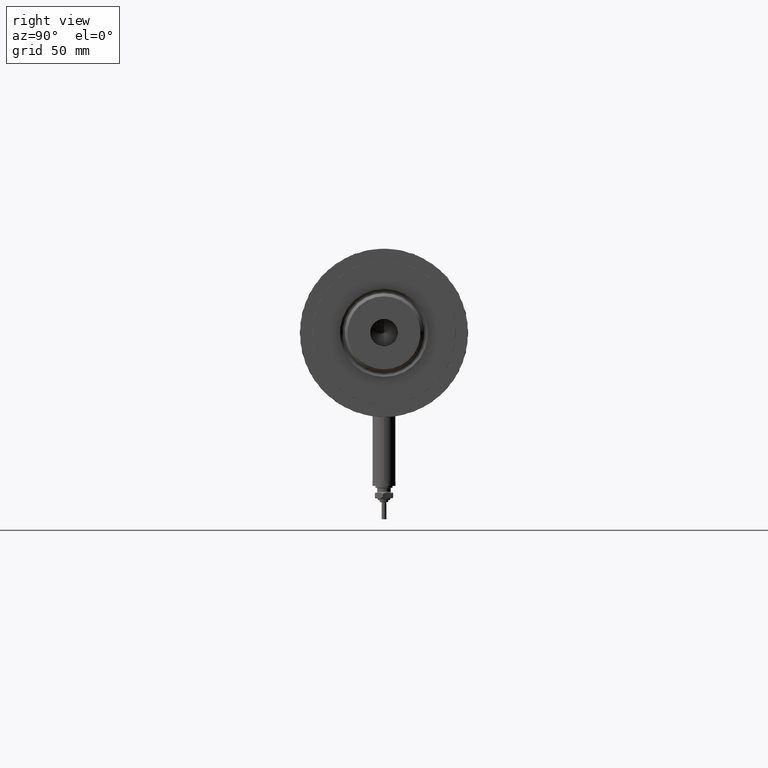
[diagram: clean part render]
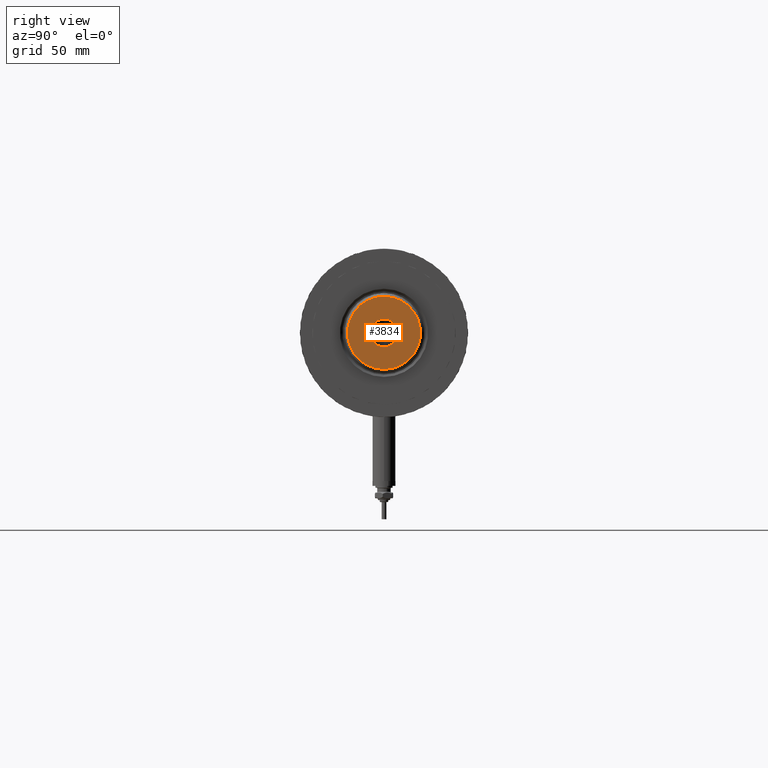
[diagram: same view with one face highlighted and labeled with its STEP entity id]
A machine part, right view. The second image highlights one B-rep face of the part: STEP entity #3834.
In plain terms, the highlighted planar face has unit normal (1, 0, -0).
Its self-contained STEP definition (entity closure, byte-faithful):
#97 = DIRECTION ( 'NONE',  ( 0.000000000000000000, 0.000000000000000000, 1.000000000000000000 ) ) ;
#331 = CARTESIAN_POINT ( 'NONE',  ( 0.000000000000000000, 0.000000000000000000, 303.3000000000000114 ) ) ;
#724 = CARTESIAN_POINT ( 'NONE',  ( 0.000000000000000000, 0.000000000000000000, 303.3000000000000114 ) ) ;
#1095 = DIRECTION ( 'NONE',  ( 1.000000000000000000, 0.000000000000000000, 0.000000000000000000 ) ) ;
#1117 = CARTESIAN_POINT ( 'NONE',  ( 0.000000000000000000, 0.000000000000000000, 303.3000000000000114 ) ) ;
#1170 = ORIENTED_EDGE ( 'NONE', *, *, #5196, .T. ) ;
#1295 = EDGE_CURVE ( 'NONE', #1327, #1823, #3377, .T. ) ;
#1327 = VERTEX_POINT ( 'NONE', #3656 ) ;
#1356 = CIRCLE ( 'NONE', #4746, 7.249999999999999112 ) ;
#1823 = VERTEX_POINT ( 'NONE', #2518 ) ;
#1857 = DIRECTION ( 'NONE',  ( -0.000000000000000000, -0.000000000000000000, 1.000000000000000000 ) ) ;
#2060 = EDGE_CURVE ( 'NONE', #1823, #1327, #1356, .T. ) ;
#2181 = DIRECTION ( 'NONE',  ( 1.000000000000000000, 0.000000000000000000, -0.000000000000000000 ) ) ;
#2518 = CARTESIAN_POINT ( 'NONE',  ( 7.249999999999999112, 0.000000000000000000, 303.3000000000000114 ) ) ;
#2540 = CIRCLE ( 'NONE', #5348, 19.09999999999997655 ) ;
#2578 = FACE_OUTER_BOUND ( 'NONE', #3039, .T. ) ;
#2819 = AXIS2_PLACEMENT_3D ( 'NONE', #5116, #1857, #3719 ) ;
#2855 = CIRCLE ( 'NONE', #4104, 19.09999999999997655 ) ;
#2876 = VERTEX_POINT ( 'NONE', #5961 ) ;
#2936 = DIRECTION ( 'NONE',  ( 1.000000000000000000, 0.000000000000000000, 0.000000000000000000 ) ) ;
#2960 = ORIENTED_EDGE ( 'NONE', *, *, #1295, .F. ) ;
#3039 = EDGE_LOOP ( 'NONE', ( #1170, #3860 ) ) ;
#3246 = EDGE_LOOP ( 'NONE', ( #4847, #2960 ) ) ;
#3377 = CIRCLE ( 'NONE', #2819, 7.249999999999999112 ) ;
#3656 = CARTESIAN_POINT ( 'NONE',  ( -7.249999999999999112, 8.878689293818310074E-16, 303.3000000000000114 ) ) ;
#3719 = DIRECTION ( 'NONE',  ( 1.000000000000000000, 0.000000000000000000, 0.000000000000000000 ) ) ;
#3833 = CARTESIAN_POINT ( 'NONE',  ( 0.000000000000000000, 0.000000000000000000, 303.3000000000000114 ) ) ;
#3834 = ADVANCED_FACE ( 'NONE', ( #2578, #5368 ), #4023, .T. ) ;
#3860 = ORIENTED_EDGE ( 'NONE', *, *, #5229, .T. ) ;
#3966 = DIRECTION ( 'NONE',  ( 1.000000000000000000, 0.000000000000000000, 0.000000000000000000 ) ) ;
#4023 = PLANE ( 'NONE',  #4480 ) ;
#4104 = AXIS2_PLACEMENT_3D ( 'NONE', #3833, #5692, #1095 ) ;
#4254 = VERTEX_POINT ( 'NONE', #4316 ) ;
#4316 = CARTESIAN_POINT ( 'NONE',  ( 19.09999999999997655, 2.424800662311758221E-15, 303.3000000000000114 ) ) ;
#4422 = DIRECTION ( 'NONE',  ( -0.000000000000000000, -0.000000000000000000, 1.000000000000000000 ) ) ;
#4480 = AXIS2_PLACEMENT_3D ( 'NONE', #331, #5783, #2181 ) ;
#4746 = AXIS2_PLACEMENT_3D ( 'NONE', #724, #4422, #3966 ) ;
#4847 = ORIENTED_EDGE ( 'NONE', *, *, #2060, .F. ) ;
#5116 = CARTESIAN_POINT ( 'NONE',  ( 0.000000000000000000, 0.000000000000000000, 303.3000000000000114 ) ) ;
#5196 = EDGE_CURVE ( 'NONE', #2876, #4254, #2855, .T. ) ;
#5229 = EDGE_CURVE ( 'NONE', #4254, #2876, #2540, .T. ) ;
#5348 = AXIS2_PLACEMENT_3D ( 'NONE', #1117, #97, #2936 ) ;
#5368 = FACE_BOUND ( 'NONE', #3246, .T. ) ;
#5692 = DIRECTION ( 'NONE',  ( 0.000000000000000000, 0.000000000000000000, 1.000000000000000000 ) ) ;
#5783 = DIRECTION ( 'NONE',  ( 0.000000000000000000, 0.000000000000000000, 1.000000000000000000 ) ) ;
#5961 = CARTESIAN_POINT ( 'NONE',  ( -19.09999999999997655, 0.000000000000000000, 303.3000000000000114 ) ) ;